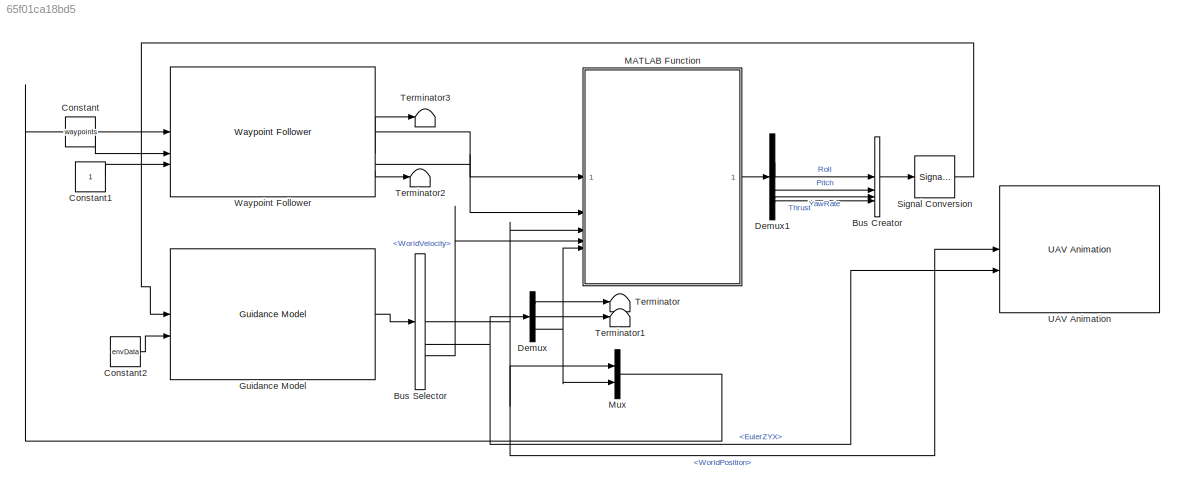
MODEL slx_65f01ca18bd5
KIND model
CONFIG AbsTol = auto
CONFIG EnableMultiTasking = off
CONFIG FixedStep = auto
CONFIG MaxStep = auto
CONFIG MinStep = auto
CONFIG RelTol = 1e-3
CONFIG SampleTimeConstraint = Unconstrained
CONFIG SolverName = VariableStepAuto
CONFIG StartTime = 0.0
CONFIG StopTime = 10
BLOCK [BusCreator] Bus Creator
  DisplayOption = bar
  InheritFromInputs = on
  Inputs = 4
  NonVirtualBus = on
  OutDataTypeStr = Bus: MultirotorGuidanceControlBus
BLOCK [BusSelector] Bus Selector
  OutputSignals = WorldPosition,EulerZYX,WorldVelocity
BLOCK [Constant] Constant
  Value = waypoints
BLOCK [Constant] Constant1
BLOCK [Constant] Constant2
  OutDataTypeStr = Bus: MultirotorGuidanceEnvironmentBus
  Value = envData
BLOCK [Demux] Demux
  Outputs = 3
BLOCK [Demux] Demux1
BLOCK [Reference] Guidance Model  REF=uavalgslib/Guidance Model
  SourceBlock = uavalgslib/Guidance Model
  SourceType = Guidance Model
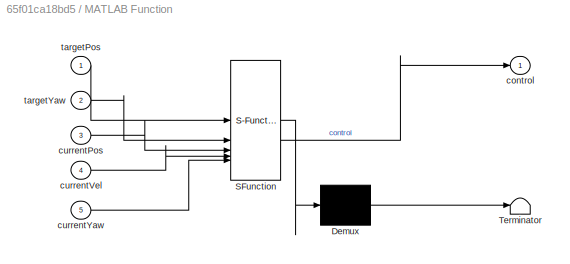
BLOCK [SubSystem] MATLAB Function
  ErrorFcn = Stateflow.Translate.translate
  PermitHierarchicalResolution = ExplicitOnly
  SFBlockType = MATLAB Function
  TreatAsAtomicUnit = on
BLOCK [Demux] MATLAB Function/ Demux 
  Outputs = 1
BLOCK [S-Function] MATLAB Function/ SFunction 
  EnableBusSupport = off
  FunctionName = sf_sfun
  PortCounts = [5 2]
  SFcnIsStateOwnerBlock = off
  SFunctionDeploymentMode = off
  Tag = Stateflow S-Function 2
BLOCK [Terminator] MATLAB Function/ Terminator 
BLOCK [Outport] MATLAB Function/control
BLOCK [Inport] MATLAB Function/currentPos
  Port = 3
BLOCK [Inport] MATLAB Function/currentVel
  Port = 4
BLOCK [Inport] MATLAB Function/currentYaw
  Port = 5
BLOCK [Inport] MATLAB Function/targetPos
BLOCK [Inport] MATLAB Function/targetYaw
  Port = 2
BLOCK [Mux] Mux
  DisplayOption = bar
  Inputs = 2
BLOCK [SignalConversion] Signal Conversion
  ConversionOutput = Nonvirtual bus
  OutDataTypeStr = Bus: MultirotorGuidanceControlBus
  OverrideOpt = off
BLOCK [Terminator] Terminator
BLOCK [Terminator] Terminator1
BLOCK [Terminator] Terminator2
BLOCK [Terminator] Terminator3
BLOCK [Reference] UAV Animation  REF=uavutilslib/UAV Animation
  SourceBlock = uavutilslib/UAV Animation
  SourceType = uav.sluav.internal.system.UAVAnimation
BLOCK [Reference] Waypoint Follower  REF=uavalgslib/Waypoint Follower
  SourceBlock = uavalgslib/Waypoint Follower
  SourceType = uav.sluav.internal.system.WaypointFollower
LINE Bus Creator:1 -> Signal Conversion:1
NET Bus Selector:1 -> MATLAB Function:3, Mux:1, UAV Animation:1
NET Bus Selector:2 -> Demux:1, UAV Animation:2
LINE Bus Selector:3 -> MATLAB Function:4
LINE Constant1:1 -> Waypoint Follower:3
LINE Constant2:1 -> Guidance Model:2
LINE Constant:1 -> Waypoint Follower:2
LINE Demux1:1 -> Bus Creator:1
LINE Demux1:2 -> Bus Creator:2
LINE Demux1:3 -> Bus Creator:3
LINE Demux1:4 -> Bus Creator:4
LINE Demux:1 -> Terminator:1
LINE Demux:2 -> Terminator1:1
NET Demux:3 -> MATLAB Function:5, Mux:2
LINE Guidance Model:1 -> Bus Selector:1
LINE MATLAB Function:1 -> Demux1:1
LINE Mux:1 -> Waypoint Follower:1
LINE Signal Conversion:1 -> Guidance Model:1
LINE Waypoint Follower:1 -> MATLAB Function:1
LINE Waypoint Follower:2 -> Terminator3:1
LINE Waypoint Follower:3 -> MATLAB Function:2
LINE Waypoint Follower:4 -> Terminator2:1
note: NET lines group one-source signal fan-out (src -> all destinations, sorted); 1:1 wires keep LINE
CHART MATLAB Function states=1 transitions=1
  STATE_LABEL 'eML_blk_kernel()'
  STATE_LABEL 'SCRIPT:\nfunction control = DroneController(targetPos, targetYaw, currentPos, currentVel, currentYaw)\n    % DRONE CONFIGURATION\n    mass = 2.83;     % kg\n    g = 9.81;        % Gravity\n    \n    % PID GAINS (Reduced for stability)\n    Kp_xy = 1.5;     % Position P\n    Kd_xy = 1.2;     % Velocity D (Damping)\n    Kp_z  = 4.0;     % Altitude P (Stronger)\n    Kd_z  = 2.5;     % Altitude D\n    Kp_yaw = 1...<+1553ch>'
CHART  states=0 transitions=0
